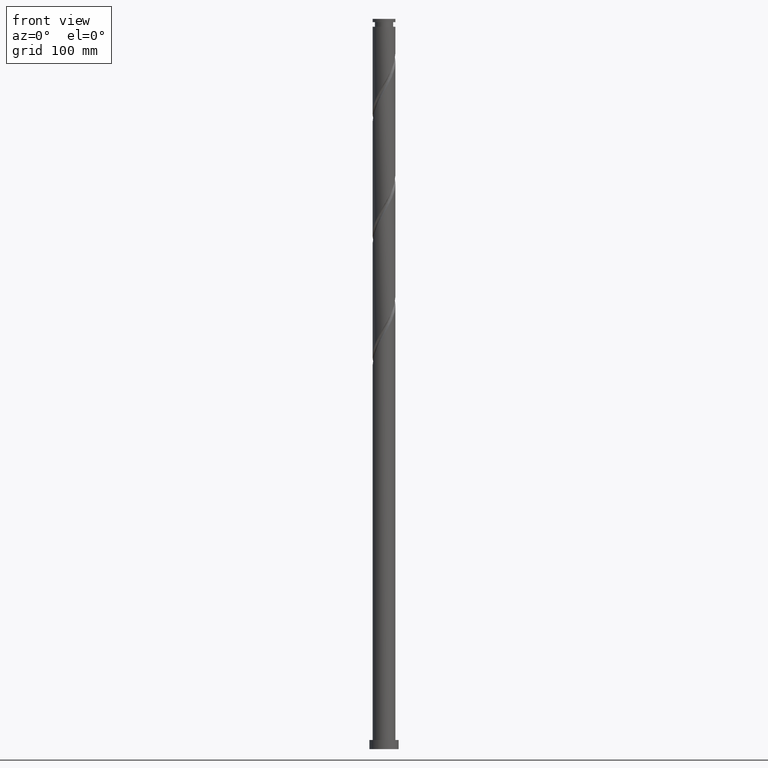
[diagram: clean part render]
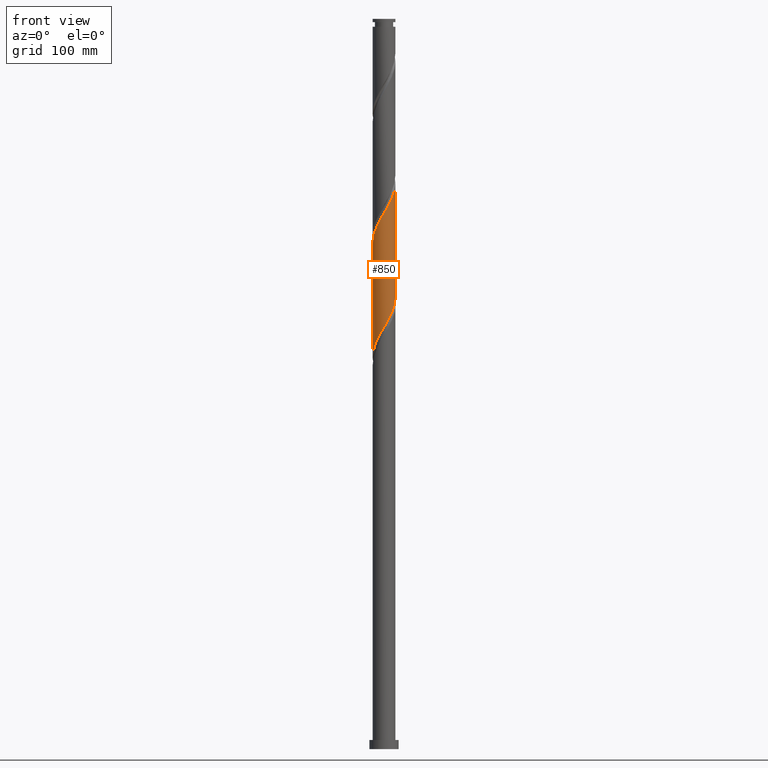
[diagram: same view with one face highlighted and labeled with its STEP entity id]
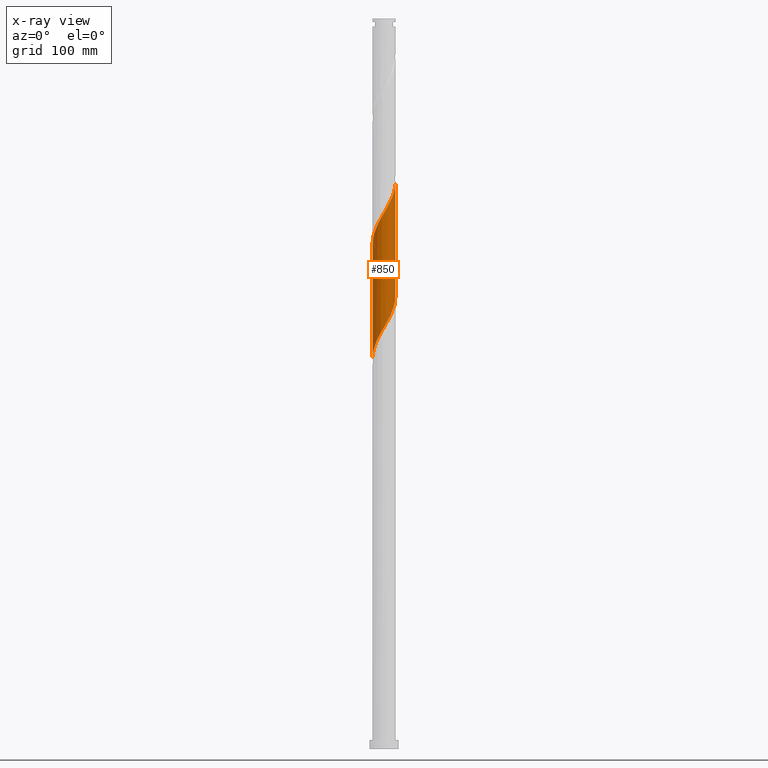
[diagram: x-ray of the same camera — body ghosted, the highlighted face saturated]
A machine part, front view. The second image highlights one B-rep face of the part: STEP entity #850.
The next image is the same camera in x-ray: the body ghosted, the highlighted face saturated — about 0% of this face is hidden behind the body in this view.
In plain terms, the highlighted cylindrical surface (edge-blend (fillet) strip) has radius 12.5 mm, axis along (-0, -0, -1).
Its self-contained STEP definition (entity closure, byte-faithful):
#24 = DIRECTION ( 'NONE',  ( -0.000000000000000000, -0.000000000000000000, -1.000000000000000000 ) ) ;
#74 = CARTESIAN_POINT ( 'NONE',  ( 11.61580572391704358, -4.617689615404707126, 612.4619009930486300 ) ) ;
#92 = CARTESIAN_POINT ( 'NONE',  ( 12.50000000000000000, -4.478613767106074545E-15, 495.6612016148903308 ) ) ;
#105 = CARTESIAN_POINT ( 'NONE',  ( -5.437120455758652326, -11.30312170976020347, 452.8127781860311529 ) ) ;
#121 = CARTESIAN_POINT ( 'NONE',  ( -1.472404652744671472, -12.45611752411871898, 459.8303220456803615 ) ) ;
#128 = CARTESIAN_POINT ( 'NONE',  ( 12.29198335511128093, -2.495993676624380875, 491.4092694141014022 ) ) ;
#141 = CARTESIAN_POINT ( 'NONE',  ( -8.812639891774814771, -8.925257272145200815, 445.7952343263819444 ) ) ;
#159 = CARTESIAN_POINT ( 'NONE',  ( -12.41357356760536668, -1.467375644356205155, 556.3215501158558709 ) ) ;
#168 = DIRECTION ( 'NONE',  ( -0.000000000000000000, -0.000000000000000000, -1.000000000000000000 ) ) ;
#190 = CARTESIAN_POINT ( 'NONE',  ( 12.50000000000000000, 1.530808498934191127E-15, 800.0000000000000000 ) ) ;
#202 = CARTESIAN_POINT ( 'NONE',  ( -8.167030959368799969, -9.519582162300695316, 572.1110238000662775 ) ) ;
#222 = CARTESIAN_POINT ( 'NONE',  ( 5.437120455758649662, -11.30312170976022479, 596.6724273088379960 ) ) ;
#224 = VERTEX_POINT ( 'NONE', #780 ) ;
#248 = CARTESIAN_POINT ( 'NONE',  ( 12.50000000000001421, -6.419346399518662645E-15, 620.4906705466459016 ) ) ;
#279 = CARTESIAN_POINT ( 'NONE',  ( 12.50000000000000178, -0.7362330219178930824, 494.4106745007050563 ) ) ;
#293 = CARTESIAN_POINT ( 'NONE',  ( 1.624877814529943620, -12.39394094256739898, 465.0934799404171827 ) ) ;
#304 = CARTESIAN_POINT ( 'NONE',  ( -9.487067962851766012, -8.139136408012319635, 444.0408483614697843 ) ) ;
#335 = CARTESIAN_POINT ( 'NONE',  ( -1.624877814529950282, -12.39394094256741319, 584.3917255544523641 ) ) ;
#348 = CARTESIAN_POINT ( 'NONE',  ( -12.50000000000000711, -0.7362330219179725743, 555.0745309941645473 ) ) ;
#386 = CARTESIAN_POINT ( 'NONE',  ( -8.894772993514934001, -8.782540258594766058, 570.3566378351538333 ) ) ;
#391 = ORIENTED_EDGE ( 'NONE', *, *, #1831, .F. ) ;
#398 = CARTESIAN_POINT ( 'NONE',  ( 12.21742800420675579, -2.642811563851077850, 615.9706729228732911 ) ) ;
#408 = CARTESIAN_POINT ( 'NONE',  ( 6.330259180984804779, -10.77858147909816822, 598.4268132737504402 ) ) ;
#432 = CARTESIAN_POINT ( 'NONE',  ( 3.502532532788452890, -12.04388247588129524, 593.1636553790136759 ) ) ;
#462 = CARTESIAN_POINT ( 'NONE',  ( 7.327901267867249047, -10.12678937316213634, 475.6197957298908818 ) ) ;
#473 = CARTESIAN_POINT ( 'NONE',  ( -2.487468592766562292, -12.25000000000000000, 458.0759360807680878 ) ) ;
#485 = CARTESIAN_POINT ( 'NONE',  ( -10.16149603392870837, -7.353015543879440230, 442.2864623965575674 ) ) ;
#499 = CARTESIAN_POINT ( 'NONE',  ( 12.41357356760535069, -1.467375644356205822, 493.1636553790137896 ) ) ;
#549 = CARTESIAN_POINT ( 'NONE',  ( -10.81552197002329585, -6.351954325404538082, 565.0934799404172963 ) ) ;
#555 = EDGE_CURVE ( 'NONE', #925, #224, #686, .T. ) ;
#561 = CARTESIAN_POINT ( 'NONE',  ( -9.622515027661060927, -8.045498354888838577, 568.6022518702416164 ) ) ;
#577 = CARTESIAN_POINT ( 'NONE',  ( 12.50000000000001421, -0.2980916780646206132, 619.9843475282057170 ) ) ;
#603 = CARTESIAN_POINT ( 'NONE',  ( 12.43641761389966227, -1.630446616350347044, 617.7250588877855080 ) ) ;
#647 = CARTESIAN_POINT ( 'NONE',  ( 2.651869041106358349, -12.25929972816160785, 466.8478659053293995 ) ) ;
#678 = CARTESIAN_POINT ( 'NONE',  ( -11.99843839451383509, -3.655176511351794666, 435.2689185369084157 ) ) ;
#686 =( BOUNDED_CURVE ( )  B_SPLINE_CURVE ( 2, ( #92, #279, #499, #128, #1209, #1779, #1948, #2127, #1020, #2318, #1222, #829, #462, #1756, #1966, #871, #1554, #647, #293, #1741, #690, #121, #473, #1579, #2103, #105, #1057, #1590, #1935, #141, #304, #485, #2304, #1416, #882, #678, #1599, #1403, #1081, #1648, #2161 ),
 .UNSPECIFIED., .F., .T. ) 
 B_SPLINE_CURVE_WITH_KNOTS ( ( 3, 2, 2, 2, 2, 2, 2, 2, 2, 2, 2, 2, 2, 2, 2, 2, 2, 2, 2, 2, 3 ),
 ( 0.8045295809515953245, 0.8092105263157894912, 0.8157894736842105088, 0.8223684210526315264, 0.8289473684210526550, 0.8355263157894736725, 0.8421052631578946901, 0.8486842105263158187, 0.8552631578947368363, 0.8618421052631578538, 0.8684210526315789824, 0.8750000000000000000, 0.8815789473684210176, 0.8881578947368421462, 0.8947368421052631637, 0.9013157894736841813, 0.9078947368421053099, 0.9144736842105263275, 0.9210526315789473450, 0.9276315789473684736, 0.9295295809515955465 ),
 .UNSPECIFIED. ) 
 CURVE ( )  GEOMETRIC_REPRESENTATION_ITEM ( )  RATIONAL_B_SPLINE_CURVE ( ( 0.9078162034606067632, 0.9068816855934137555, 0.9090909090909354839, 0.9059859027333625470, 0.9090909090909354839, 0.9059859027333625470, 0.9090909090909354839, 0.9059859027333625470, 0.9090909090909354839, 0.9059859027333625470, 0.9090909090909354839, 0.9059859027333625470, 0.9090909090909354839, 0.9059859027333625470, 0.9090909090909354839, 0.9059859027333625470, 0.9090909090909354839, 0.9059859027333625470, 0.9090909090909354839, 0.9059859027333625470, 0.9090909090909354839, 0.9059859027333625470, 0.9090909090909354839, 0.9059859027333625470, 0.9090909090909354839, 0.9059859027333625470, 0.9090909090909354839, 0.9059859027333625470, 0.9090909090909354839, 0.9059859027333625470, 0.9090909090909354839, 0.9059859027333625470, 0.9090909090909354839, 0.9059859027333625470, 0.9090909090909354839, 0.9059859027333625470, 0.9090909090909354839, 0.9059859027333625470, 0.9090909090909354839, 0.9081951262308840533, 0.9078162034606065411 ) ) 
 REPRESENTATION_ITEM ( '' )  );
#690 = CARTESIAN_POINT ( 'NONE',  ( -0.4372590323955716785, -12.49234984054595721, 461.5847080105925784 ) ) ;
#693 = LINE ( 'NONE', #1406, #1644 ) ;
#709 = CARTESIAN_POINT ( 'NONE',  ( -6.488771576365729210, -10.73399658402359158, 575.6197957298905976 ) ) ;
#723 = CYLINDRICAL_SURFACE ( 'NONE', #2331, 12.50000000000000000 ) ;
#730 = LINE ( 'NONE', #190, #2177 ) ;
#740 = CARTESIAN_POINT ( 'NONE',  ( -12.00274651105807422, -3.490569608428349735, 559.8303220456803047 ) ) ;
#752 = ORIENTED_EDGE ( 'NONE', *, *, #1517, .F. ) ;
#764 = CARTESIAN_POINT ( 'NONE',  ( 4.469826494273553052, -11.67350209282075824, 594.9180413439257791 ) ) ;
#780 = CARTESIAN_POINT ( 'NONE',  ( -12.49999999999999645, 3.445546858160272951E-14, 428.9945349482235883 ) ) ;
#788 = CARTESIAN_POINT ( 'NONE',  ( 10.16149603392872258, -7.353015543879452665, 607.1987430983116383 ) ) ;
#829 = CARTESIAN_POINT ( 'NONE',  ( 8.167030959368787535, -9.519582162300682882, 477.3741816948030987 ) ) ;
#850 = ADVANCED_FACE ( 'NONE', ( #912 ), #723, .T. ) ;
#853 =( BOUNDED_CURVE ( )  B_SPLINE_CURVE ( 2, ( #2030, #348, #159, #1830, #740, #2190, #2202, #549, #2019, #561, #386, #202, #1666, #709, #1434, #2158, #1984, #1250, #335, #1798, #1853, #1488, #1863, #432, #764, #222, #408, #1889, #1150, #1160, #1321, #788, #2212, #1709, #74, #964, #398, #603, #2261, #577, #248 ),
 .UNSPECIFIED., .F., .F. ) 
 B_SPLINE_CURVE_WITH_KNOTS ( ( 3, 2, 2, 2, 2, 2, 2, 2, 2, 2, 2, 2, 2, 2, 2, 2, 2, 2, 2, 2, 3 ),
 ( 0.3045295809515958796, 0.3092105263157894912, 0.3157894736842105088, 0.3223684210526315264, 0.3289473684210526550, 0.3355263157894736725, 0.3421052631578946901, 0.3486842105263158187, 0.3552631578947368363, 0.3618421052631578538, 0.3684210526315789824, 0.3750000000000000000, 0.3815789473684210176, 0.3881578947368421462, 0.3947368421052631637, 0.4013157894736841813, 0.4078947368421053099, 0.4144736842105263275, 0.4210526315789473450, 0.4276315789473684736, 0.4295295809515954355 ),
 .UNSPECIFIED. ) 
 CURVE ( )  GEOMETRIC_REPRESENTATION_ITEM ( )  RATIONAL_B_SPLINE_CURVE ( ( 0.9078162034606125363, 0.9068816855934200838, 0.9090909090909415902, 0.9059859027333685422, 0.9090909090909415902, 0.9059859027333685422, 0.9090909090909415902, 0.9059859027333685422, 0.9090909090909415902, 0.9059859027333685422, 0.9090909090909415902, 0.9059859027333685422, 0.9090909090909415902, 0.9059859027333685422, 0.9090909090909415902, 0.9059859027333685422, 0.9090909090909415902, 0.9059859027333685422, 0.9090909090909415902, 0.9059859027333685422, 0.9090909090909415902, 0.9059859027333685422, 0.9090909090909415902, 0.9059859027333685422, 0.9090909090909415902, 0.9059859027333685422, 0.9090909090909415902, 0.9059859027333685422, 0.9090909090909415902, 0.9059859027333685422, 0.9090909090909415902, 0.9059859027333685422, 0.9090909090909415902, 0.9059859027333685422, 0.9090909090909415902, 0.9059859027333685422, 0.9090909090909415902, 0.9059859027333685422, 0.9090909090909415902, 0.9081951262308902706, 0.9078162034606127584 ) ) 
 REPRESENTATION_ITEM ( '' )  );
#871 = CARTESIAN_POINT ( 'NONE',  ( 4.633515419724467677, -11.65561556037505753, 470.3566378351540607 ) ) ;
#882 = CARTESIAN_POINT ( 'NONE',  ( -11.61580572391702937, -4.617689615404697356, 437.0233045018207463 ) ) ;
#912 = FACE_OUTER_BOUND ( 'NONE', #1239, .T. ) ;
#925 = VERTEX_POINT ( 'NONE', #1101 ) ;
#964 = CARTESIAN_POINT ( 'NONE',  ( 11.99843839451384575, -3.655176511351809765, 614.2162869579608468 ) ) ;
#969 = CARTESIAN_POINT ( 'NONE',  ( -12.50000000000001421, -3.084272014280362778E-14, 553.8240038799792728 ) ) ;
#1020 = CARTESIAN_POINT ( 'NONE',  ( 10.21901849884216062, -7.198726340146687441, 482.6373395895400904 ) ) ;
#1057 = CARTESIAN_POINT ( 'NONE',  ( -6.330259180984801226, -10.77858147909814868, 451.0583922211189360 ) ) ;
#1081 = CARTESIAN_POINT ( 'NONE',  ( -12.48579069699953337, -0.5958445021311531420, 430.0057606421716514 ) ) ;
#1101 = CARTESIAN_POINT ( 'NONE',  ( 12.50000000000000000, -4.478613767106074545E-15, 495.6612016148903308 ) ) ;
#1150 = CARTESIAN_POINT ( 'NONE',  ( 8.018018898992890442, -9.589649260290663335, 601.9355852035748740 ) ) ;
#1152 = VERTEX_POINT ( 'NONE', #969 ) ;
#1160 = CARTESIAN_POINT ( 'NONE',  ( 8.812639891774823653, -8.925257272145218579, 603.6899711684874319 ) ) ;
#1209 = CARTESIAN_POINT ( 'NONE',  ( 12.00274651105806001, -3.490569608428352844, 489.6548834491892421 ) ) ;
#1222 = CARTESIAN_POINT ( 'NONE',  ( 8.894772993514918014, -8.782540258594758953, 479.1285676597154861 ) ) ;
#1239 = EDGE_LOOP ( 'NONE', ( #752, #391, #1536, #1401 ) ) ;
#1250 = CARTESIAN_POINT ( 'NONE',  ( -2.651869041106372560, -12.25929972816161850, 582.6373395895400336 ) ) ;
#1321 = CARTESIAN_POINT ( 'NONE',  ( 9.487067962851774894, -8.139136408012335622, 605.4443571333996488 ) ) ;
#1401 = ORIENTED_EDGE ( 'NONE', *, *, #555, .F. ) ;
#1403 = CARTESIAN_POINT ( 'NONE',  ( -12.43641761389964451, -1.630446616350340827, 431.7601466070838114 ) ) ;
#1406 = CARTESIAN_POINT ( 'NONE',  ( -12.50000000000000000, 0.000000000000000000, 800.0000000000000000 ) ) ;
#1416 = CARTESIAN_POINT ( 'NONE',  ( -11.23317305332022364, -5.580202719457602711, 438.7776904667329632 ) ) ;
#1434 = CARTESIAN_POINT ( 'NONE',  ( -5.561143498045107769, -11.19480607219933255, 577.3741816948029282 ) ) ;
#1488 = CARTESIAN_POINT ( 'NONE',  ( 1.472404652744663478, -12.45611752411873674, 589.6548834491889011 ) ) ;
#1517 = EDGE_CURVE ( 'NONE', #1930, #925, #730, .T. ) ;
#1536 = ORIENTED_EDGE ( 'NONE', *, *, #1987, .T. ) ;
#1554 = CARTESIAN_POINT ( 'NONE',  ( 3.642692230415415011, -11.95745764426833446, 468.6022518702417301 ) ) ;
#1579 = CARTESIAN_POINT ( 'NONE',  ( -3.502532532788456887, -12.04388247588127570, 456.3215501158558141 ) ) ;
#1590 = CARTESIAN_POINT ( 'NONE',  ( -7.223397906210956343, -10.25404124843609033, 449.3040062562066623 ) ) ;
#1599 = CARTESIAN_POINT ( 'NONE',  ( -12.21742800420674335, -2.642811563851064971, 433.5145325719961988 ) ) ;
#1644 = VECTOR ( 'NONE', #2283, 1000.000000000000000 ) ;
#1648 = CARTESIAN_POINT ( 'NONE',  ( -12.50000000000000178, -0.2980916780645983533, 429.5008579666638298 ) ) ;
#1658 = CARTESIAN_POINT ( 'NONE',  ( 0.000000000000000000, 0.000000000000000000, 800.0000000000000000 ) ) ;
#1666 = CARTESIAN_POINT ( 'NONE',  ( -7.327901267867267698, -10.12678937316214522, 573.8654097649786081 ) ) ;
#1709 = CARTESIAN_POINT ( 'NONE',  ( 11.23317305332023786, -5.580202719457613370, 610.7075150281365268 ) ) ;
#1741 = CARTESIAN_POINT ( 'NONE',  ( 0.5978865879535224526, -12.52858215697318478, 463.3390939755048521 ) ) ;
#1756 = CARTESIAN_POINT ( 'NONE',  ( 6.488771576365717664, -10.73399658402358092, 473.8654097649785513 ) ) ;
#1779 = CARTESIAN_POINT ( 'NONE',  ( 11.71350966700483553, -4.485145540232325700, 487.9004974842767410 ) ) ;
#1798 = CARTESIAN_POINT ( 'NONE',  ( -0.5978865879535343320, -12.52858215697320077, 586.1461115193645810 ) ) ;
#1830 = CARTESIAN_POINT ( 'NONE',  ( -12.29198335511129514, -2.495993676624378654, 558.0759360807679741 ) ) ;
#1831 = EDGE_CURVE ( 'NONE', #1152, #1930, #853, .T. ) ;
#1853 = CARTESIAN_POINT ( 'NONE',  ( 0.4372590323955675151, -12.49234984054596787, 587.9004974842769116 ) ) ;
#1863 = CARTESIAN_POINT ( 'NONE',  ( 2.487468592766559183, -12.25000000000001599, 591.4092694141012316 ) ) ;
#1889 = CARTESIAN_POINT ( 'NONE',  ( 7.223397906210958119, -10.25404124843610632, 600.1811992386628845 ) ) ;
#1930 = VERTEX_POINT ( 'NONE', #1939 ) ;
#1935 = CARTESIAN_POINT ( 'NONE',  ( -8.018018898992885113, -9.589649260290647348, 447.5496202912944455 ) ) ;
#1939 = CARTESIAN_POINT ( 'NONE',  ( 12.50000000000001421, -6.419346399518662645E-15, 620.4906705466459016 ) ) ;
#1948 = CARTESIAN_POINT ( 'NONE',  ( 11.26451581851405770, -5.418549932818423898, 486.1461115193645810 ) ) ;
#1966 = CARTESIAN_POINT ( 'NONE',  ( 5.561143498045096223, -11.19480607219932189, 472.1110238000664481 ) ) ;
#1984 = CARTESIAN_POINT ( 'NONE',  ( -3.642692230415424337, -11.95745764426834690, 580.8829536246277030 ) ) ;
#1987 = EDGE_CURVE ( 'NONE', #1152, #224, #693, .T. ) ;
#2019 = CARTESIAN_POINT ( 'NONE',  ( -10.21901849884218016, -7.198726340146689218, 566.8478659053292859 ) ) ;
#2030 = CARTESIAN_POINT ( 'NONE',  ( -12.50000000000001421, -3.084272014280362778E-14, 553.8240038799792728 ) ) ;
#2103 = CARTESIAN_POINT ( 'NONE',  ( -4.469826494273550388, -11.67350209282074225, 454.5671641509434835 ) ) ;
#2127 = CARTESIAN_POINT ( 'NONE',  ( 10.81552197002327631, -6.351954325404534529, 484.3917255544522504 ) ) ;
#2158 = CARTESIAN_POINT ( 'NONE',  ( -4.633515419724479223, -11.65561556037507174, 579.1285676597154861 ) ) ;
#2161 = CARTESIAN_POINT ( 'NONE',  ( -12.49999999999999645, 3.445546858160273582E-14, 428.9945349482236452 ) ) ;
#2171 = DIRECTION ( 'NONE',  ( -1.000000000000000000, 0.000000000000000000, 0.000000000000000000 ) ) ;
#2177 = VECTOR ( 'NONE', #168, 1000.000000000000000 ) ;
#2190 = CARTESIAN_POINT ( 'NONE',  ( -11.71350966700485330, -4.485145540232320371, 561.5847080105925215 ) ) ;
#2202 = CARTESIAN_POINT ( 'NONE',  ( -11.26451581851407546, -5.418549932818430115, 563.3390939755048521 ) ) ;
#2212 = CARTESIAN_POINT ( 'NONE',  ( 10.69733454362448022, -6.466609131668537458, 608.9531290632241962 ) ) ;
#2261 = CARTESIAN_POINT ( 'NONE',  ( 12.48579069699954758, -0.5958445021311560286, 619.4794448526979522 ) ) ;
#2283 = DIRECTION ( 'NONE',  ( -0.000000000000000000, -0.000000000000000000, -1.000000000000000000 ) ) ;
#2304 = CARTESIAN_POINT ( 'NONE',  ( -10.69733454362446956, -6.466609131668519694, 440.5320764316452937 ) ) ;
#2318 = CARTESIAN_POINT ( 'NONE',  ( 9.622515027661041387, -8.045498354888836801, 480.8829536246277030 ) ) ;
#2331 = AXIS2_PLACEMENT_3D ( 'NONE', #1658, #24, #2171 ) ;